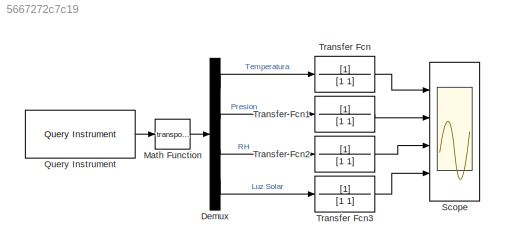
MODEL slx_5667272c7c19
KIND model
CONFIG AbsTol = auto
CONFIG EnableMultiTasking = off
CONFIG FixedStep = auto
CONFIG MaxStep = auto
CONFIG MinStep = auto
CONFIG RelTol = 1e-3
CONFIG SampleTimeConstraint = Unconstrained
CONFIG SolverName = FixedStepAuto
CONFIG StartTime = 0.0
CONFIG StopTime = inf
BLOCK [Demux] Demux
  Ports = [1, 4]
BLOCK [Math] Math Function
  Operator = transpose
  Ports = [1, 1]
  SignedPower = on
BLOCK [Reference] Query Instrument  REF=instrumentlib/Query Instrument
  Ports = [0, 1]
  SourceBlock = instrumentlib/Query Instrument
  SourceProductBaseCode = IC
  SourceType = queryinstrument
BLOCK [Scope] Scope
  Floating = off
  NumInputPorts = 4
  Ports = [4]
  ScopeSpecificationString = Simulink.scopes.TimeScopeBlockCfg('CurrentConfiguration', extmgr.ConfigurationSet(extmgr.Configuration('Core','General UI',true),extmgr.Configuration('Core','Source UI',true),extmgr.Configuration('Sources','WiredSimulink',true),extmgr.Configuration('Visuals','Time Domain',true,'SerializedDisplays',{struct('MinYLimReal','0','MaxYLimReal','1100','YLabelReal','','MinYLimMag','0.00000','MaxYLimMag','2...<+1509ch>
BLOCK [TransferFcn] Transfer Fcn
  Denominator = [1 1]
BLOCK [TransferFcn] Transfer Fcn1
  Denominator = [1 1]
BLOCK [TransferFcn] Transfer Fcn2
  Denominator = [1 1]
BLOCK [TransferFcn] Transfer Fcn3
  Denominator = [1 1]
LINE Demux:1 -> Transfer Fcn:1
LINE Demux:2 -> Transfer Fcn1:1
LINE Demux:3 -> Transfer Fcn2:1
LINE Demux:4 -> Transfer Fcn3:1
LINE Math Function:1 -> Demux:1
LINE Query Instrument:1 -> Math Function:1
LINE Transfer Fcn1:1 -> Scope:2
LINE Transfer Fcn2:1 -> Scope:3
LINE Transfer Fcn3:1 -> Scope:4
LINE Transfer Fcn:1 -> Scope:1
